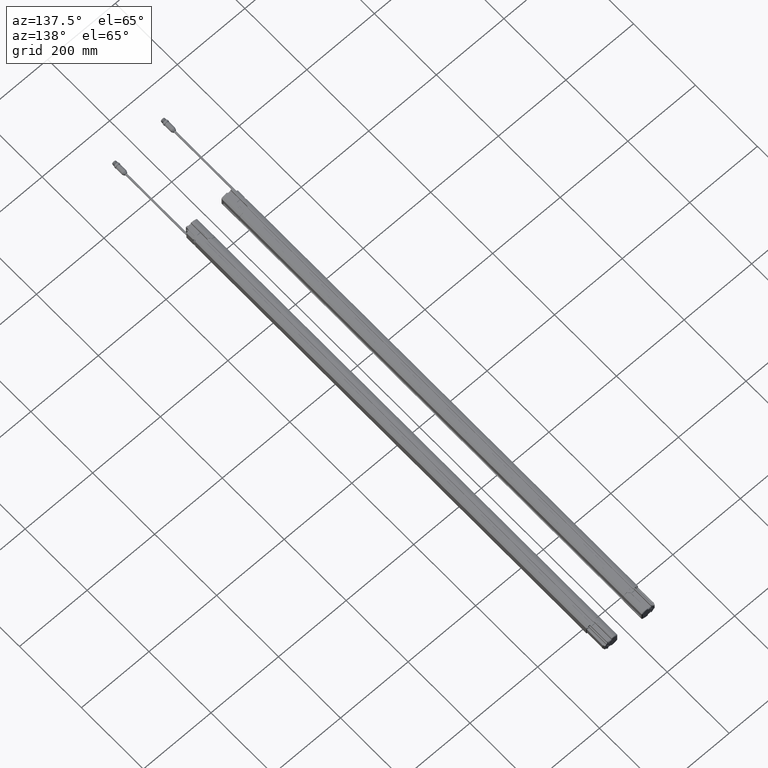
[diagram: clean part render]
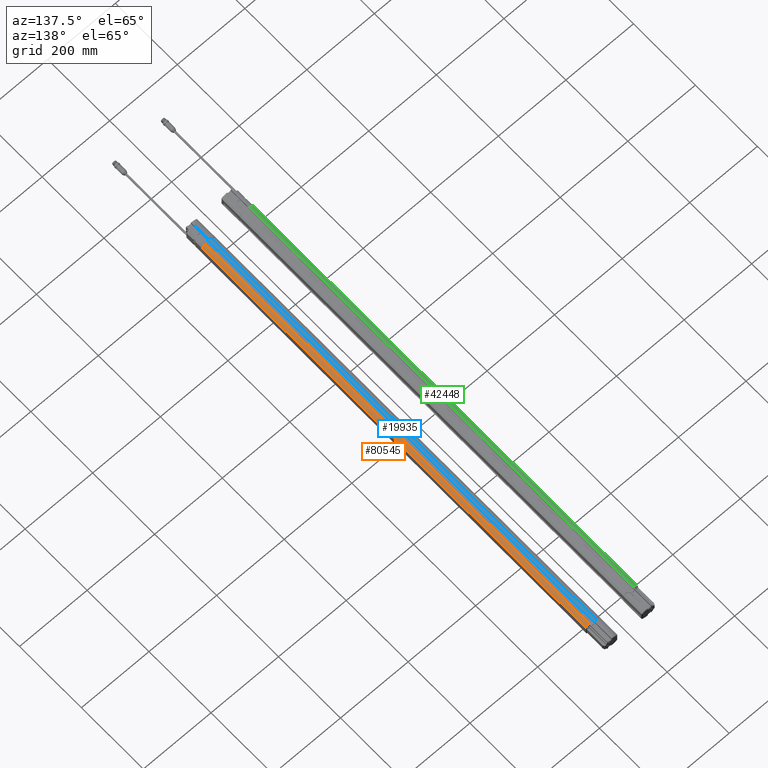
[diagram: same view with three faces highlighted in distinct colors, each labeled with its STEP entity id]
A machine part, auxiliary view with three faces highlighted in distinct colors.
Their STEP definitions:

[orange] entity #80545 — the highlighted cylindrical surface (edge-blend (fillet) strip) has radius 20 mm, axis along (0, -1, 0).
#261 = EDGE_CURVE ( 'NONE', #7077, #69375, #101271, .T. ) ;
#2588 = CARTESIAN_POINT ( 'NONE',  ( 2.442082008853827091, 24.38976377952756280, -0.08908659095016240037 ) ) ;
#3319 = LINE ( 'NONE', #11561, #87561 ) ;
#7077 = VERTEX_POINT ( 'NONE', #84685 ) ;
#11191 = EDGE_CURVE ( 'NONE', #69375, #20433, #65054, .T. ) ;
#11561 = CARTESIAN_POINT ( 'NONE',  ( 2.563750379481327446, 105.5314982283464644, 0.6888581677513858637 ) ) ;
#14568 = CARTESIAN_POINT ( 'NONE',  ( 2.442082008853827091, -24.38976377952756280, -0.08908659095011692286 ) ) ;
#15357 = ORIENTED_EDGE ( 'NONE', *, *, #50386, .F. ) ;
#20433 = VERTEX_POINT ( 'NONE', #38789 ) ;
#21506 = DIRECTION ( 'NONE',  ( 0.000000000000000000, 0.000000000000000000, 1.000000000000000000 ) ) ;
#22325 = ORIENTED_EDGE ( 'NONE', *, *, #11191, .F. ) ;
#25966 = AXIS2_PLACEMENT_3D ( 'NONE', #14568, #101246, #61570 ) ;
#26550 = VERTEX_POINT ( 'NONE', #96814 ) ;
#31019 = ORIENTED_EDGE ( 'NONE', *, *, #261, .F. ) ;
#34065 = DIRECTION ( 'NONE',  ( 0.000000000000000000, 1.000000000000000000, 0.000000000000000000 ) ) ;
#35423 = EDGE_CURVE ( 'NONE', #7077, #26550, #3319, .T. ) ;
#35606 = VECTOR ( 'NONE', #81519, 39.37007874015748143 ) ;
#36169 = CARTESIAN_POINT ( 'NONE',  ( 2.993108301093949208, 24.38976377952756280, 0.4733823106458149854 ) ) ;
#36302 = ORIENTED_EDGE ( 'NONE', *, *, #35423, .T. ) ;
#38789 = CARTESIAN_POINT ( 'NONE',  ( 2.993108301093945212, -24.38976377952756280, 0.4733823106458606711 ) ) ;
#41039 = DIRECTION ( 'NONE',  ( 0.000000000000000000, -1.000000000000000000, 9.330999788449910017E-16 ) ) ;
#42475 = CIRCLE ( 'NONE', #25966, 0.7874015748031496509 ) ;
#50386 = EDGE_CURVE ( 'NONE', #20433, #26550, #42475, .T. ) ;
#56827 = AXIS2_PLACEMENT_3D ( 'NONE', #2588, #34065, #65572 ) ;
#60252 = CYLINDRICAL_SURFACE ( 'NONE', #76456, 0.7874015748031496509 ) ;
#61570 = DIRECTION ( 'NONE',  ( 0.000000000000000000, 0.000000000000000000, 1.000000000000000000 ) ) ;
#64551 = CARTESIAN_POINT ( 'NONE',  ( 2.993108301093949208, 105.5314982283464644, 0.4733823106457386021 ) ) ;
#65054 = LINE ( 'NONE', #64551, #35606 ) ;
#65572 = DIRECTION ( 'NONE',  ( 0.000000000000000000, 0.000000000000000000, 1.000000000000000000 ) ) ;
#66954 = DIRECTION ( 'NONE',  ( 0.000000000000000000, -1.000000000000000000, 0.000000000000000000 ) ) ;
#69375 = VERTEX_POINT ( 'NONE', #36169 ) ;
#76456 = AXIS2_PLACEMENT_3D ( 'NONE', #92208, #66954, #21506 ) ;
#80545 = ADVANCED_FACE ( 'NONE', ( #83424 ), #60252, .T. ) ;
#80889 = EDGE_LOOP ( 'NONE', ( #15357, #22325, #31019, #36302 ) ) ;
#81519 = DIRECTION ( 'NONE',  ( 0.000000000000000000, -1.000000000000000000, 9.330999788449910017E-16 ) ) ;
#83424 = FACE_OUTER_BOUND ( 'NONE', #80889, .T. ) ;
#84685 = CARTESIAN_POINT ( 'NONE',  ( 2.563741564821570673, 24.38976377970968556, 0.6888609175923307015 ) ) ;
#87561 = VECTOR ( 'NONE', #41039, 39.37007874015748143 ) ;
#92208 = CARTESIAN_POINT ( 'NONE',  ( 2.442082008853827091, 105.5314982283464644, -0.08908659095023818697 ) ) ;
#96814 = CARTESIAN_POINT ( 'NONE',  ( 2.563741369282034999, -24.38976377762558911, 0.6888596261230965911 ) ) ;
#101246 = DIRECTION ( 'NONE',  ( 0.000000000000000000, -1.000000000000000000, 0.000000000000000000 ) ) ;
#101271 = CIRCLE ( 'NONE', #56827, 0.7874015748031496509 ) ;

[blue] entity #19935 — the highlighted planar face has unit normal (-0, 0, 1).
#557 = CARTESIAN_POINT ( 'NONE',  ( 2.023751335565929121, -24.61500045269681536, 0.6889763779527776633 ) ) ;
#720 = DIRECTION ( 'NONE',  ( 0.01714781913703620000, -0.9998529653398259276, 9.329627808066928797E-16 ) ) ;
#951 = EDGE_CURVE ( 'NONE', #60587, #92815, #59987, .T. ) ;
#1094 = CARTESIAN_POINT ( 'NONE',  ( 2.179848396939366051, 24.47727463205196585, 0.6889763779527302567 ) ) ;
#1590 = VECTOR ( 'NONE', #100203, 39.37007874015748143 ) ;
#1861 =( BOUNDED_CURVE ( )  B_SPLINE_CURVE ( 3, ( #51038, #26292, #3059, #42297 ),
 .UNSPECIFIED., .F., .F. ) 
 B_SPLINE_CURVE_WITH_KNOTS ( ( 4, 4 ),
 ( 2.741921438065625161, 3.541263869113804752 ),
 .UNSPECIFIED. ) 
 CURVE ( )  GEOMETRIC_REPRESENTATION_ITEM ( )  RATIONAL_B_SPLINE_CURVE ( ( 1.000000000000000000, 0.9474593192821140208, 0.9474593192821140208, 1.000000000000000000 ) ) 
 REPRESENTATION_ITEM ( '' )  );
#2041 = DIRECTION ( 'NONE',  ( -1.000000000000000000, 0.000000000000000000, 0.000000000000000000 ) ) ;
#2262 = LINE ( 'NONE', #17224, #41426 ) ;
#2596 = CARTESIAN_POINT ( 'NONE',  ( 2.181102362204724532, 24.38976377952756280, 0.6889763779527323662 ) ) ;
#2908 = EDGE_CURVE ( 'NONE', #96332, #99833, #59232, .T. ) ;
#3059 = CARTESIAN_POINT ( 'NONE',  ( 2.027632130778497022, -24.61874072779447786, 0.6889763779527767751 ) ) ;
#3429 = LINE ( 'NONE', #34914, #52392 ) ;
#3542 = VERTEX_POINT ( 'NONE', #27942 ) ;
#4357 = VERTEX_POINT ( 'NONE', #21433 ) ;
#4796 = ORIENTED_EDGE ( 'NONE', *, *, #85368, .T. ) ;
#4838 = CARTESIAN_POINT ( 'NONE',  ( 2.023751335565913134, 24.61500045269689352, 0.6889763779527323662 ) ) ;
#5719 = VECTOR ( 'NONE', #82655, 39.37007874015748143 ) ;
#6501 = LINE ( 'NONE', #29726, #62848 ) ;
#6977 = B_SPLINE_CURVE_WITH_KNOTS ( 'NONE', 3,
 ( #53080, #52584, #69087, #43798 ),
 .UNSPECIFIED., .F., .F.,
 ( 4, 4 ),
 ( 0.000000000000000000, 1.000000000000000000 ),
 .UNSPECIFIED. ) ;
#7394 = ORIENTED_EDGE ( 'NONE', *, *, #88818, .T. ) ;
#7606 = DIRECTION ( 'NONE',  ( 1.000000000000000000, 0.000000000000000000, 0.000000000000000000 ) ) ;
#8547 = DIRECTION ( 'NONE',  ( -5.364019552635549203E-17, 9.330999788449910017E-16, 1.000000000000000000 ) ) ;
#8815 = EDGE_CURVE ( 'NONE', #94252, #92815, #44912, .T. ) ;
#8999 = CARTESIAN_POINT ( 'NONE',  ( 1.855093309797189116, 24.38976377952756280, 0.6889763779527323662 ) ) ;
#9578 = CARTESIAN_POINT ( 'NONE',  ( 1.421259842519685179, 24.85236220472441104, 0.6889763779527302567 ) ) ;
#10289 = CARTESIAN_POINT ( 'NONE',  ( 2.996062992125984259, -24.38976377952756280, 0.6889763779527776633 ) ) ;
#11559 = CARTESIAN_POINT ( 'NONE',  ( 2.178347555992122153, 24.38976377952756280, 0.6889763779527323662 ) ) ;
#12130 = CARTESIAN_POINT ( 'NONE',  ( 2.113841296792799085, 24.62598816333110463, 0.6889763779527302567 ) ) ;
#12189 = EDGE_CURVE ( 'NONE', #31768, #59036, #52732, .T. ) ;
#13319 = LINE ( 'NONE', #46826, #21715 ) ;
#13587 = DIRECTION ( 'NONE',  ( 0.01714781913704729877, 0.9998529653398259276, -9.329627808066928797E-16 ) ) ;
#14250 = DIRECTION ( 'NONE',  ( -1.000000000000000000, 0.000000000000000000, 0.000000000000000000 ) ) ;
#14383 = VERTEX_POINT ( 'NONE', #80842 ) ;
#15101 = VERTEX_POINT ( 'NONE', #1094 ) ;
#15209 = CARTESIAN_POINT ( 'NONE',  ( 1.858284060545184913, 24.45552459933701073, 0.6889763779527323662 ) ) ;
#15606 = CARTESIAN_POINT ( 'NONE',  ( 1.421259842519685179, 26.67322834645669261, 0.6889763779527302567 ) ) ;
#17224 = CARTESIAN_POINT ( 'NONE',  ( 2.178347555992122153, -24.38976377952756280, 0.6889763779527776633 ) ) ;
#18323 = PLANE ( 'NONE',  #76475 ) ;
#18550 = VERTEX_POINT ( 'NONE', #73665 ) ;
#19370 = EDGE_CURVE ( 'NONE', #4357, #82116, #6977, .T. ) ;
#19935 = ADVANCED_FACE ( 'NONE', ( #73054 ), #18323, .T. ) ;
#20329 = ORIENTED_EDGE ( 'NONE', *, *, #48352, .F. ) ;
#20980 = CARTESIAN_POINT ( 'NONE',  ( 2.179848396939378041, 24.47727463205196585, 0.6889763779527323662 ) ) ;
#21191 = LINE ( 'NONE', #52690, #46437 ) ;
#21428 = EDGE_CURVE ( 'NONE', #18550, #92676, #22308, .T. ) ;
#21433 = CARTESIAN_POINT ( 'NONE',  ( 2.029774818581551177, 24.62908608234759811, 0.6889763779527302567 ) ) ;
#21588 = EDGE_CURVE ( 'NONE', #97224, #3542, #74367, .T. ) ;
#21715 = VECTOR ( 'NONE', #7606, 39.37007874015748143 ) ;
#22308 = LINE ( 'NONE', #101234, #73413 ) ;
#22311 = CARTESIAN_POINT ( 'NONE',  ( 2.023751335565929121, -24.61500045269681536, 0.6889763779527776633 ) ) ;
#23935 = VECTOR ( 'NONE', #75706, 39.37007874015748143 ) ;
#26081 = ORIENTED_EDGE ( 'NONE', *, *, #85404, .T. ) ;
#26292 = CARTESIAN_POINT ( 'NONE',  ( 2.029751301101709871, -24.62369630719301128, 0.6889763779527767751 ) ) ;
#26500 = CARTESIAN_POINT ( 'NONE',  ( 2.096456692913385655, -26.67322834645669261, 0.6889763779527796617 ) ) ;
#27361 = ORIENTED_EDGE ( 'NONE', *, *, #77177, .F. ) ;
#27942 = CARTESIAN_POINT ( 'NONE',  ( 2.111716050836244030, -26.67322834645669261, 0.6889763779527796617 ) ) ;
#28476 = DIRECTION ( 'NONE',  ( -0.4056877845371821278, -0.9140117184573253173, 1.692378062754290549E-15 ) ) ;
#29026 = VECTOR ( 'NONE', #76509, 39.37007874015748854 ) ;
#29351 = EDGE_CURVE ( 'NONE', #15101, #59264, #36452, .T. ) ;
#29360 = EDGE_CURVE ( 'NONE', #92676, #69526, #6501, .T. ) ;
#29620 = VECTOR ( 'NONE', #13587, 39.37007874015748143 ) ;
#29726 = CARTESIAN_POINT ( 'NONE',  ( 2.996062992125984259, -24.38976377952756280, 0.6889763779527776633 ) ) ;
#31177 = VERTEX_POINT ( 'NONE', #88588 ) ;
#31492 = VERTEX_POINT ( 'NONE', #94051 ) ;
#31613 = CARTESIAN_POINT ( 'NONE',  ( 2.111716050836244030, 24.85236220472441104, 0.6889763779527302567 ) ) ;
#31768 = VERTEX_POINT ( 'NONE', #80921 ) ;
#32268 = DIRECTION ( 'NONE',  ( 0.000000000000000000, -1.000000000000000000, 9.330999788449910017E-16 ) ) ;
#32654 = EDGE_CURVE ( 'NONE', #51972, #31177, #44471, .T. ) ;
#33342 = VECTOR ( 'NONE', #45340, 39.37007874015748143 ) ;
#33705 = ORIENTED_EDGE ( 'NONE', *, *, #19370, .T. ) ;
#33863 = VECTOR ( 'NONE', #86304, 39.37007874015748143 ) ;
#34914 = CARTESIAN_POINT ( 'NONE',  ( 2.115157480314960647, 24.62598816333110463, 0.6889763779527323662 ) ) ;
#35718 = CARTESIAN_POINT ( 'NONE',  ( 2.038694128407283479, -26.67322834645669261, 0.6889763779527796617 ) ) ;
#36452 = LINE ( 'NONE', #20980, #84255 ) ;
#38514 = ORIENTED_EDGE ( 'NONE', *, *, #21588, .F. ) ;
#38644 = CARTESIAN_POINT ( 'NONE',  ( 2.179848396939378041, -24.47727463205200493, 0.6889763779527776633 ) ) ;
#39973 = EDGE_CURVE ( 'NONE', #88518, #15101, #82250, .T. ) ;
#41426 = VECTOR ( 'NONE', #720, 39.37007874015748854 ) ;
#41994 = ORIENTED_EDGE ( 'NONE', *, *, #52441, .F. ) ;
#42297 = CARTESIAN_POINT ( 'NONE',  ( 2.023751335565929121, -24.61500045269681536, 0.6889763779527776633 ) ) ;
#42419 = EDGE_CURVE ( 'NONE', #3542, #51972, #97204, .T. ) ;
#42700 = VECTOR ( 'NONE', #77800, 39.37007874015748143 ) ;
#43060 = VERTEX_POINT ( 'NONE', #78772 ) ;
#43378 = CARTESIAN_POINT ( 'NONE',  ( 2.111716050836244030, -25.91535433070866290, 0.6889763779527796617 ) ) ;
#43798 = CARTESIAN_POINT ( 'NONE',  ( 2.023751335565913134, 24.61500045269689352, 0.6889763779527323662 ) ) ;
#44471 = LINE ( 'NONE', #35718, #54557 ) ;
#44912 = LINE ( 'NONE', #90877, #42700 ) ;
#45229 = CARTESIAN_POINT ( 'NONE',  ( 2.111716050836244030, -24.62598816333118279, 0.6889763779527776633 ) ) ;
#45340 = DIRECTION ( 'NONE',  ( -0.7200222938689656571, -0.6939509322219207244, 6.475256001757357231E-16 ) ) ;
#46287 = CARTESIAN_POINT ( 'NONE',  ( 2.113841296792811075, -24.62598816333118279, 0.6889763779527776633 ) ) ;
#46437 = VECTOR ( 'NONE', #75411, 39.37007874015748143 ) ;
#46677 = CARTESIAN_POINT ( 'NONE',  ( 1.858284060545177141, 24.38976377952756280, 0.6889763779527323662 ) ) ;
#46826 = CARTESIAN_POINT ( 'NONE',  ( 2.996062992125984259, 24.38976377952756280, 0.6889763779527323662 ) ) ;
#48352 = EDGE_CURVE ( 'NONE', #96332, #31492, #87703, .T. ) ;
#48887 = VECTOR ( 'NONE', #2041, 39.37007874015748143 ) ;
#49079 = ORIENTED_EDGE ( 'NONE', *, *, #8815, .F. ) ;
#49970 = VECTOR ( 'NONE', #53441, 39.37007874015748143 ) ;
#50241 = LINE ( 'NONE', #89466, #52099 ) ;
#51038 = CARTESIAN_POINT ( 'NONE',  ( 2.029774818581555174, -24.62908608234751995, 0.6889763779527776633 ) ) ;
#51214 = CARTESIAN_POINT ( 'NONE',  ( 1.858284060545177141, 24.85236220472441104, 0.6889763779527302567 ) ) ;
#51972 = VERTEX_POINT ( 'NONE', #78247 ) ;
#52099 = VECTOR ( 'NONE', #88456, 39.37007874015748854 ) ;
#52392 = VECTOR ( 'NONE', #58679, 39.37007874015748143 ) ;
#52441 = EDGE_CURVE ( 'NONE', #31492, #31768, #2262, .T. ) ;
#52584 = CARTESIAN_POINT ( 'NONE',  ( 2.029751761076716399, 24.62380172502330922, 0.6889763779527323662 ) ) ;
#52611 = LINE ( 'NONE', #91807, #33342 ) ;
#52690 = CARTESIAN_POINT ( 'NONE',  ( 1.855093309797189116, 105.5314960629921188, 0.6889763779526556498 ) ) ;
#52732 = LINE ( 'NONE', #38644, #58791 ) ;
#53080 = CARTESIAN_POINT ( 'NONE',  ( 2.029774818581551177, 24.62908608234759811, 0.6889763779527302567 ) ) ;
#53441 = DIRECTION ( 'NONE',  ( 1.000000000000000000, -1.105468594259830075E-29, -3.041804511566584910E-43 ) ) ;
#54557 = VECTOR ( 'NONE', #74466, 39.37007874015748854 ) ;
#54828 = ORIENTED_EDGE ( 'NONE', *, *, #21428, .F. ) ;
#55354 = DIRECTION ( 'NONE',  ( -1.000000000000000000, -5.005166531088350049E-32, -5.364019552635549203E-17 ) ) ;
#57152 = ORIENTED_EDGE ( 'NONE', *, *, #100652, .T. ) ;
#58679 = DIRECTION ( 'NONE',  ( -1.000000000000000000, 0.000000000000000000, 0.000000000000000000 ) ) ;
#58740 = ORIENTED_EDGE ( 'NONE', *, *, #95666, .F. ) ;
#58791 = VECTOR ( 'NONE', #28476, 39.37007874015748854 ) ;
#59036 = VERTEX_POINT ( 'NONE', #46287 ) ;
#59128 = ORIENTED_EDGE ( 'NONE', *, *, #42419, .F. ) ;
#59232 = LINE ( 'NONE', #90669, #23935 ) ;
#59264 = VERTEX_POINT ( 'NONE', #12130 ) ;
#59987 = LINE ( 'NONE', #51214, #5719 ) ;
#60587 = VERTEX_POINT ( 'NONE', #15209 ) ;
#61226 = CARTESIAN_POINT ( 'NONE',  ( 2.115157480314960647, -24.62598816333118279, 0.6889763779527776633 ) ) ;
#61560 = LINE ( 'NONE', #22311, #29026 ) ;
#62848 = VECTOR ( 'NONE', #14250, 39.37007874015748143 ) ;
#63566 = VECTOR ( 'NONE', #55354, 39.37007874015748143 ) ;
#63710 = EDGE_CURVE ( 'NONE', #31177, #99637, #1861, .T. ) ;
#65445 = ORIENTED_EDGE ( 'NONE', *, *, #78996, .T. ) ;
#66334 = CARTESIAN_POINT ( 'NONE',  ( 2.181102362204724532, -24.38976377952756280, 0.6889763779527776633 ) ) ;
#67947 = DIRECTION ( 'NONE',  ( -0.4056877845372484082, 0.9140117184572958964, -8.528643151565768894E-16 ) ) ;
#68535 = ORIENTED_EDGE ( 'NONE', *, *, #32654, .F. ) ;
#68716 = CARTESIAN_POINT ( 'NONE',  ( 2.178347555992122153, 24.38976377952756280, 0.6889763779527323662 ) ) ;
#69087 = CARTESIAN_POINT ( 'NONE',  ( 2.027601654377692686, 24.61871135491685436, 0.6889763779527323662 ) ) ;
#69526 = VERTEX_POINT ( 'NONE', #88750 ) ;
#72085 = VERTEX_POINT ( 'NONE', #88858 ) ;
#72392 = LINE ( 'NONE', #31613, #33863 ) ;
#73054 = FACE_OUTER_BOUND ( 'NONE', #87732, .T. ) ;
#73413 = VECTOR ( 'NONE', #86271, 39.37007874015748143 ) ;
#73665 = CARTESIAN_POINT ( 'NONE',  ( 1.858284060545177141, -24.45552459933712797, 0.6889763779527776633 ) ) ;
#74367 = LINE ( 'NONE', #43378, #99488 ) ;
#74466 = DIRECTION ( 'NONE',  ( -0.004363309284746885904, 0.9999904807207343760, -8.662703560784513573E-16 ) ) ;
#74858 = DIRECTION ( 'NONE',  ( 0.000000000000000000, -1.000000000000000000, 9.330999788449910017E-16 ) ) ;
#75411 = DIRECTION ( 'NONE',  ( 0.000000000000000000, -1.000000000000000000, 9.330999788449910017E-16 ) ) ;
#75706 = DIRECTION ( 'NONE',  ( 0.000000000000000000, 1.000000000000000000, -9.330999788449910017E-16 ) ) ;
#76475 = AXIS2_PLACEMENT_3D ( 'NONE', #9578, #8547, #32268 ) ;
#76509 = DIRECTION ( 'NONE',  ( -0.7200222938693067176, 0.6939509322215667853, -5.315083372877187864E-17 ) ) ;
#77177 = EDGE_CURVE ( 'NONE', #88518, #99833, #13319, .T. ) ;
#77406 = ORIENTED_EDGE ( 'NONE', *, *, #29351, .T. ) ;
#77800 = DIRECTION ( 'NONE',  ( 1.000000000000000000, 0.000000000000000000, 0.000000000000000000 ) ) ;
#78051 = LINE ( 'NONE', #15606, #63566 ) ;
#78188 = LINE ( 'NONE', #61226, #49970 ) ;
#78247 = CARTESIAN_POINT ( 'NONE',  ( 2.038694128407283479, -26.67322834645669261, 0.6889763779527796617 ) ) ;
#78772 = CARTESIAN_POINT ( 'NONE',  ( 2.111716050836244030, 24.62598816333110463, 0.6889763779527323662 ) ) ;
#78996 = EDGE_CURVE ( 'NONE', #97224, #59036, #78188, .T. ) ;
#79342 = ORIENTED_EDGE ( 'NONE', *, *, #63710, .F. ) ;
#79860 = ORIENTED_EDGE ( 'NONE', *, *, #95414, .T. ) ;
#80842 = CARTESIAN_POINT ( 'NONE',  ( 2.038694128407283479, 26.67322834645669261, 0.6889763779527302567 ) ) ;
#80921 = CARTESIAN_POINT ( 'NONE',  ( 2.179848396939378041, -24.47727463205200493, 0.6889763779527776633 ) ) ;
#82116 = VERTEX_POINT ( 'NONE', #4838 ) ;
#82250 = LINE ( 'NONE', #11559, #29620 ) ;
#82655 = DIRECTION ( 'NONE',  ( 0.000000000000000000, -1.000000000000000000, 9.330999788449910017E-16 ) ) ;
#84255 = VECTOR ( 'NONE', #67947, 39.37007874015748143 ) ;
#85368 = EDGE_CURVE ( 'NONE', #43060, #72085, #72392, .T. ) ;
#85392 = CARTESIAN_POINT ( 'NONE',  ( 1.858284060545177141, -24.38976377952756280, 0.6889763779527776633 ) ) ;
#85404 = EDGE_CURVE ( 'NONE', #72085, #14383, #78051, .T. ) ;
#85796 = EDGE_CURVE ( 'NONE', #94252, #69526, #21191, .T. ) ;
#86271 = DIRECTION ( 'NONE',  ( 0.000000000000000000, 1.000000000000000000, -9.330999788449910017E-16 ) ) ;
#86304 = DIRECTION ( 'NONE',  ( 0.000000000000000000, 1.000000000000000000, -9.330999788449910017E-16 ) ) ;
#87703 = LINE ( 'NONE', #10289, #48887 ) ;
#87732 = EDGE_LOOP ( 'NONE', ( #7394, #96016, #49079, #95642, #92180, #54828, #58740, #79342, #68535, #59128, #38514, #65445, #89776, #41994, #20329, #99651, #27361, #91416, #77406, #57152, #4796, #26081, #79860, #33705 ) ) ;
#88456 = DIRECTION ( 'NONE',  ( -0.004363309284747155653, -0.9999904807207343760, 9.330910964057102387E-16 ) ) ;
#88518 = VERTEX_POINT ( 'NONE', #68716 ) ;
#88588 = CARTESIAN_POINT ( 'NONE',  ( 2.029774818581555174, -24.62908608234751995, 0.6889763779527776633 ) ) ;
#88750 = CARTESIAN_POINT ( 'NONE',  ( 1.855093309797189116, -24.38976377952756280, 0.6889763779527776633 ) ) ;
#88818 = EDGE_CURVE ( 'NONE', #82116, #60587, #52611, .T. ) ;
#88858 = CARTESIAN_POINT ( 'NONE',  ( 2.111716050836244030, 26.67322834645669261, 0.6889763779527302567 ) ) ;
#89466 = CARTESIAN_POINT ( 'NONE',  ( 2.038694128407283479, 26.67322834645669261, 0.6889763779527302567 ) ) ;
#89776 = ORIENTED_EDGE ( 'NONE', *, *, #12189, .F. ) ;
#90669 = CARTESIAN_POINT ( 'NONE',  ( 2.181102362204724532, 105.5314960629921188, 0.6889763779526556498 ) ) ;
#90877 = CARTESIAN_POINT ( 'NONE',  ( 2.996062992125984259, 24.38976377952756280, 0.6889763779527323662 ) ) ;
#91416 = ORIENTED_EDGE ( 'NONE', *, *, #39973, .T. ) ;
#91807 = CARTESIAN_POINT ( 'NONE',  ( 2.023751335565929121, 24.61500045269685444, 0.6889763779527323662 ) ) ;
#92180 = ORIENTED_EDGE ( 'NONE', *, *, #29360, .F. ) ;
#92676 = VERTEX_POINT ( 'NONE', #85392 ) ;
#92815 = VERTEX_POINT ( 'NONE', #46677 ) ;
#94051 = CARTESIAN_POINT ( 'NONE',  ( 2.178347555992122153, -24.38976377952756280, 0.6889763779527776633 ) ) ;
#94252 = VERTEX_POINT ( 'NONE', #8999 ) ;
#95414 = EDGE_CURVE ( 'NONE', #14383, #4357, #50241, .T. ) ;
#95642 = ORIENTED_EDGE ( 'NONE', *, *, #85796, .T. ) ;
#95666 = EDGE_CURVE ( 'NONE', #99637, #18550, #61560, .T. ) ;
#96016 = ORIENTED_EDGE ( 'NONE', *, *, #951, .T. ) ;
#96332 = VERTEX_POINT ( 'NONE', #66334 ) ;
#97204 = LINE ( 'NONE', #26500, #1590 ) ;
#97224 = VERTEX_POINT ( 'NONE', #45229 ) ;
#99488 = VECTOR ( 'NONE', #74858, 39.37007874015748143 ) ;
#99637 = VERTEX_POINT ( 'NONE', #557 ) ;
#99651 = ORIENTED_EDGE ( 'NONE', *, *, #2908, .T. ) ;
#99833 = VERTEX_POINT ( 'NONE', #2596 ) ;
#100203 = DIRECTION ( 'NONE',  ( -1.000000000000000000, 1.010050353771184079E-30, 1.082467449009529993E-15 ) ) ;
#100652 = EDGE_CURVE ( 'NONE', #59264, #43060, #3429, .T. ) ;
#101234 = CARTESIAN_POINT ( 'NONE',  ( 1.858284060545177141, -25.91535433070866290, 0.6889763779527796617 ) ) ;

[green] entity #42448 — the highlighted cylindrical surface (edge-blend (fillet) strip) has radius 20 mm, axis along (0, -1, 0).
#9083 = ORIENTED_EDGE ( 'NONE', *, *, #88911, .T. ) ;
#9512 = ORIENTED_EDGE ( 'NONE', *, *, #99714, .F. ) ;
#12512 = FACE_OUTER_BOUND ( 'NONE', #40257, .T. ) ;
#15206 = CARTESIAN_POINT ( 'NONE',  ( -2.563741724156956892, 24.38976374356708376, 0.6888608699881260122 ) ) ;
#17683 = EDGE_CURVE ( 'NONE', #56329, #99912, #76265, .T. ) ;
#20862 = CARTESIAN_POINT ( 'NONE',  ( -2.442082008853827091, -24.38976377952756280, -0.08908659095011653428 ) ) ;
#21366 = EDGE_CURVE ( 'NONE', #99912, #92189, #38295, .T. ) ;
#28377 = VECTOR ( 'NONE', #86606, 39.37007874015748143 ) ;
#28505 = CARTESIAN_POINT ( 'NONE',  ( -2.442082008853827091, 105.5314982283464644, -0.08908659095023779839 ) ) ;
#35068 = AXIS2_PLACEMENT_3D ( 'NONE', #20862, #98295, #58595 ) ;
#38295 = LINE ( 'NONE', #62067, #51717 ) ;
#40257 = EDGE_LOOP ( 'NONE', ( #69623, #9083, #9512, #41455 ) ) ;
#41455 = ORIENTED_EDGE ( 'NONE', *, *, #21366, .F. ) ;
#42448 = ADVANCED_FACE ( 'NONE', ( #12512 ), #91974, .T. ) ;
#45518 = DIRECTION ( 'NONE',  ( 0.000000000000000000, 1.000000000000000000, -9.330999788449910017E-16 ) ) ;
#47407 = CARTESIAN_POINT ( 'NONE',  ( -2.563750379481327446, 105.5314982283464644, 0.6888581677513878621 ) ) ;
#51717 = VECTOR ( 'NONE', #45518, 39.37007874015748143 ) ;
#54746 = DIRECTION ( 'NONE',  ( 1.618670438735870178E-30, 1.000000000000000000, -2.807945609944789752E-45 ) ) ;
#56329 = VERTEX_POINT ( 'NONE', #72850 ) ;
#57290 = AXIS2_PLACEMENT_3D ( 'NONE', #101702, #54746, #63526 ) ;
#58595 = DIRECTION ( 'NONE',  ( 0.000000000000000000, 0.000000000000000000, -1.000000000000000000 ) ) ;
#60583 = CIRCLE ( 'NONE', #57290, 0.7874015748031496509 ) ;
#61040 = DIRECTION ( 'NONE',  ( 0.000000000000000000, 0.000000000000000000, -1.000000000000000000 ) ) ;
#61901 = LINE ( 'NONE', #47407, #28377 ) ;
#62067 = CARTESIAN_POINT ( 'NONE',  ( -2.993108301093945212, 105.5314982283464644, 0.4733823106457393792 ) ) ;
#62270 = CARTESIAN_POINT ( 'NONE',  ( -2.993108301093945212, -24.38976377952756280, 0.4733823106458606711 ) ) ;
#62529 = AXIS2_PLACEMENT_3D ( 'NONE', #28505, #68755, #61040 ) ;
#63526 = DIRECTION ( 'NONE',  ( -1.734723475976807094E-15, 0.000000000000000000, -1.000000000000000000 ) ) ;
#64654 = VERTEX_POINT ( 'NONE', #15206 ) ;
#68755 = DIRECTION ( 'NONE',  ( 0.000000000000000000, -1.000000000000000000, 0.000000000000000000 ) ) ;
#69623 = ORIENTED_EDGE ( 'NONE', *, *, #17683, .F. ) ;
#72850 = CARTESIAN_POINT ( 'NONE',  ( -2.563741175253460458, -24.38976377953591168, 0.6888596405699094483 ) ) ;
#76265 = CIRCLE ( 'NONE', #35068, 0.7874015748031497619 ) ;
#86606 = DIRECTION ( 'NONE',  ( 0.000000000000000000, 1.000000000000000000, -9.330999788449910017E-16 ) ) ;
#88911 = EDGE_CURVE ( 'NONE', #56329, #64654, #61901, .T. ) ;
#91974 = CYLINDRICAL_SURFACE ( 'NONE', #62529, 0.7874015748031496509 ) ;
#92189 = VERTEX_POINT ( 'NONE', #100093 ) ;
#98295 = DIRECTION ( 'NONE',  ( 0.000000000000000000, -1.000000000000000000, 0.000000000000000000 ) ) ;
#99714 = EDGE_CURVE ( 'NONE', #92189, #64654, #60583, .T. ) ;
#99912 = VERTEX_POINT ( 'NONE', #62270 ) ;
#100093 = CARTESIAN_POINT ( 'NONE',  ( -2.993108301093945212, 24.38976377952756280, 0.4733823106458158181 ) ) ;
#101702 = CARTESIAN_POINT ( 'NONE',  ( -2.442082008853827091, 24.38976377952756280, -0.08908659095016199791 ) ) ;